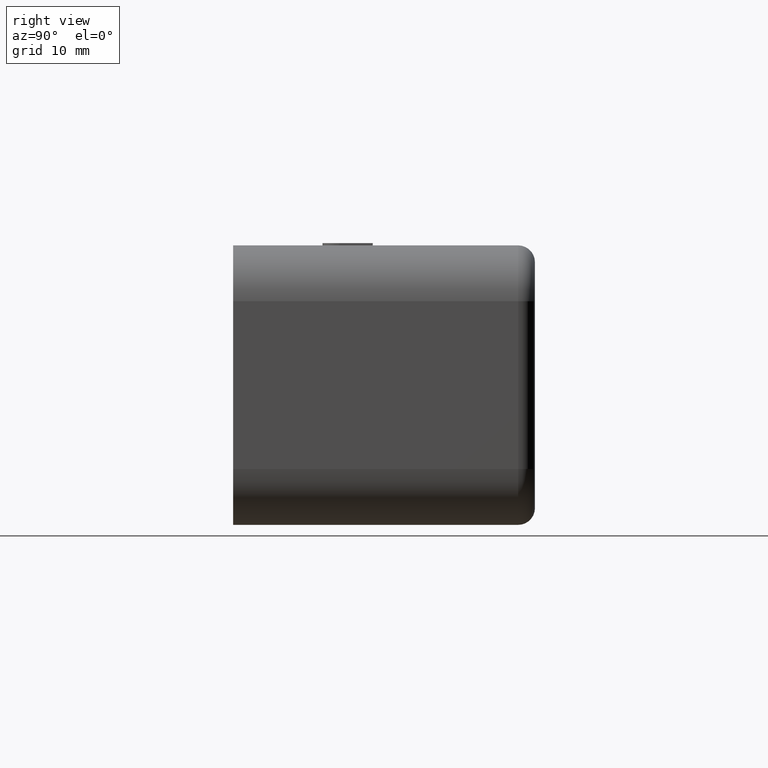
[diagram: clean part render]
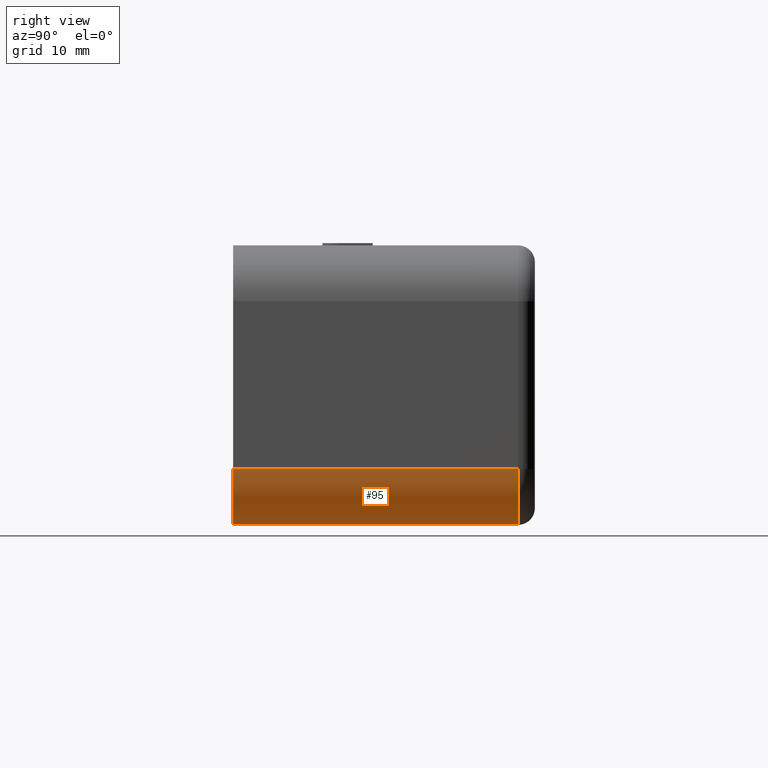
[diagram: same view with one face highlighted and labeled with its STEP entity id]
A machine part, right view. The second image highlights one B-rep face of the part: STEP entity #95.
In plain terms, the highlighted cylindrical surface (partial cylindrical patch) has radius 5 mm, axis along (-0, -1, 0).
Its self-contained STEP definition (entity closure, byte-faithful):
#95 = ADVANCED_FACE( '', ( #488 ), #489, .T. );
#488 = FACE_OUTER_BOUND( '', #1188, .T. );
#489 = CYLINDRICAL_SURFACE( '', #1189, 5.00000000000000 );
#1188 = EDGE_LOOP( '', ( #2199, #2200, #2201, #2202 ) );
#1189 = AXIS2_PLACEMENT_3D( '', #2203, #2204, #2205 );
#2199 = ORIENTED_EDGE( '', *, *, #4726, .F. );
#2200 = ORIENTED_EDGE( '', *, *, #4739, .T. );
#2201 = ORIENTED_EDGE( '', *, *, #4740, .F. );
#2202 = ORIENTED_EDGE( '', *, *, #4657, .F. );
#2203 = CARTESIAN_POINT( '', ( 22.0000000000000, 2.00000000000000, -7.50000000000000 ) );
#2204 = DIRECTION( '', ( -6.93889390390723E-017, -1.00000000000000, 0.000000000000000 ) );
#2205 = DIRECTION( '', ( -1.00000000000000, 6.93889390390723E-017, 0.000000000000000 ) );
#4657 = EDGE_CURVE( '', #5699, #5701, #5702, .T. );
#4726 = EDGE_CURVE( '', #5824, #5699, #5826, .F. );
#4739 = EDGE_CURVE( '', #5824, #5844, #5845, .F. );
#4740 = EDGE_CURVE( '', #5701, #5844, #5846, .T. );
#5699 = VERTEX_POINT( '', #7285 );
#5701 = VERTEX_POINT( '', #7288 );
#5702 = CIRCLE( '', #7289, 5.00000000000000 );
#5824 = VERTEX_POINT( '', #7463 );
#5826 = LINE( '', #7466, #7467 );
#5844 = VERTEX_POINT( '', #7488 );
#5845 = CIRCLE( '', #7489, 5.00000000000000 );
#5846 = LINE( '', #7490, #7491 );
#7285 = CARTESIAN_POINT( '', ( 22.0000000000000, 0.000000000000000, -12.5000000000000 ) );
#7288 = CARTESIAN_POINT( '', ( 27.0000000000000, 0.000000000000000, -7.50000000000003 ) );
#7289 = AXIS2_PLACEMENT_3D( '', #8891, #8892, #8893 );
#7463 = CARTESIAN_POINT( '', ( 22.0000000000000, 25.5000000000000, -12.5000000000000 ) );
#7466 = CARTESIAN_POINT( '', ( 22.0000000000000, 50.5000000000000, -12.5000000000000 ) );
#7467 = VECTOR( '', #8992, 1000.00000000000 );
#7488 = CARTESIAN_POINT( '', ( 27.0000000000000, 25.5000000000000, -7.50000000000000 ) );
#7489 = AXIS2_PLACEMENT_3D( '', #9023, #9024, #9025 );
#7490 = CARTESIAN_POINT( '', ( 27.0000000000000, 2.00000000000000, -7.50000000000000 ) );
#7491 = VECTOR( '', #9026, 1000.00000000000 );
#8891 = CARTESIAN_POINT( '', ( 22.0000000000000, 0.000000000000000, -7.50000000000002 ) );
#8892 = DIRECTION( '', ( 0.000000000000000, -1.00000000000000, 0.000000000000000 ) );
#8893 = DIRECTION( '', ( 0.000000000000000, 0.000000000000000, -1.00000000000000 ) );
#8992 = DIRECTION( '', ( 6.93889390390723E-017, 1.00000000000000, 0.000000000000000 ) );
#9023 = CARTESIAN_POINT( '', ( 22.0000000000000, 25.5000000000000, -7.50000000000000 ) );
#9024 = DIRECTION( '', ( 0.000000000000000, 1.00000000000000, 0.000000000000000 ) );
#9025 = DIRECTION( '', ( 0.000000000000000, 0.000000000000000, 1.00000000000000 ) );
#9026 = DIRECTION( '', ( 6.93889390390723E-017, 1.00000000000000, 0.000000000000000 ) );